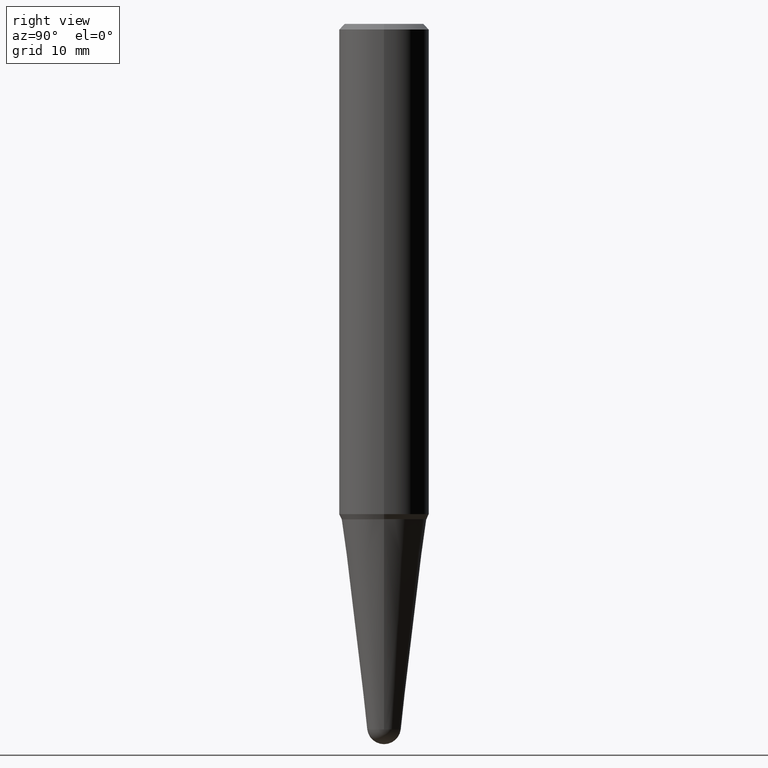
[diagram: clean part render]
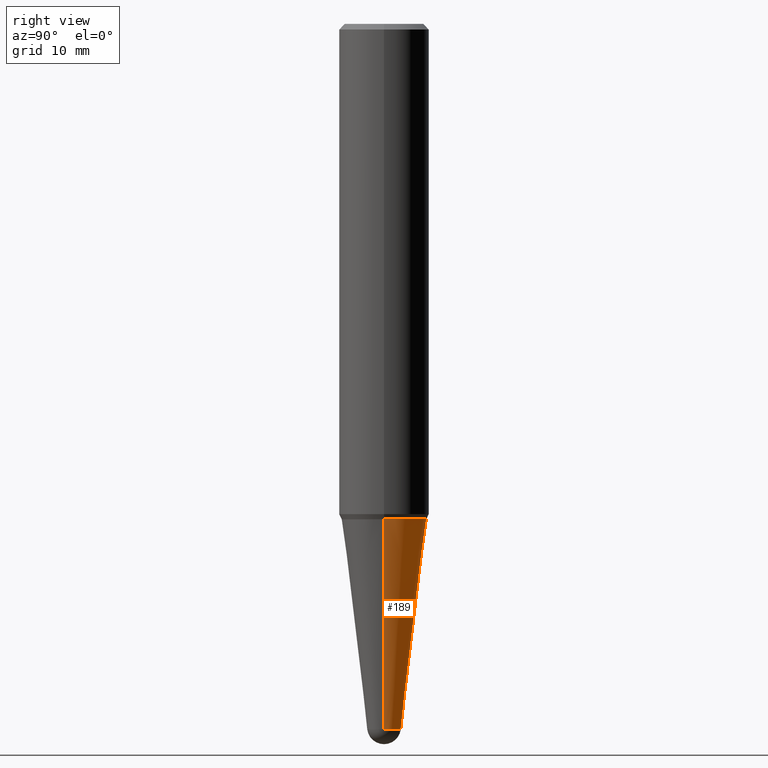
[diagram: same view with one face highlighted and labeled with its STEP entity id]
A machine part, right view. The second image highlights one B-rep face of the part: STEP entity #189.
In plain terms, the highlighted conical surface has half-angle 7 deg.
Its self-contained STEP definition (entity closure, byte-faithful):
#6 = DIRECTION ( 'NONE',  ( -2.445468806185136597E-29, 3.491481338843145583E-15, 1.000000000000000000 ) ) ;
#11 = CARTESIAN_POINT ( 'NONE',  ( 0.2364679309439789157, -1.125282041807015082E-14, -2.750000000000000000 ) ) ;
#17 = CARTESIAN_POINT ( 'NONE',  ( 6.501196143360338918E-16, 0.09310082902394276050, -3.917631344411403482 ) ) ;
#29 = ORIENTED_EDGE ( 'NONE', *, *, #335, .T. ) ;
#43 = CARTESIAN_POINT ( 'NONE',  ( 9.580445246891225390E-29, -1.367833673147939771E-14, -3.917631344411403038 ) ) ;
#50 = CARTESIAN_POINT ( 'NONE',  ( -0.09310082902395643012, -1.046909176500562336E-14, -3.917631344411403038 ) ) ;
#64 = CARTESIAN_POINT ( 'NONE',  ( -0.2364679309439789157, -7.921367976093998557E-15, -2.750000000000000000 ) ) ;
#92 = CIRCLE ( 'NONE', #259, 0.2364679309439789157 ) ;
#94 = DIRECTION ( 'NONE',  ( 1.000000000000000000, -6.982962677686267499E-15, 0.000000000000000000 ) ) ;
#95 = VERTEX_POINT ( 'NONE', #185 ) ;
#96 = CARTESIAN_POINT ( 'NONE',  ( -0.09310082902395643012, -1.301681555391724342E-14, -3.917631344411403038 ) ) ;
#117 = VECTOR ( 'NONE', #269, 39.37007874015748143 ) ;
#118 = DIRECTION ( 'NONE',  ( 1.000000000000000000, -6.982962677686275388E-15, 0.000000000000000000 ) ) ;
#128 = EDGE_CURVE ( 'NONE', #313, #391, #454, .T. ) ;
#132 = ORIENTED_EDGE ( 'NONE', *, *, #339, .F. ) ;
#133 = LINE ( 'NONE', #96, #117 ) ;
#153 = CIRCLE ( 'NONE', #247, 0.09310082902395643012 ) ;
#160 = DIRECTION ( 'NONE',  ( -2.445468806185136597E-29, 3.491481338843145583E-15, 1.000000000000000000 ) ) ;
#164 = CARTESIAN_POINT ( 'NONE',  ( 0.09310082902395643012, -1.432845634581533822E-14, -3.917631344411403038 ) ) ;
#183 = VECTOR ( 'NONE', #305, 39.37007874015748143 ) ;
#185 = CARTESIAN_POINT ( 'NONE',  ( 0.09310082902395643012, -1.279063838194274531E-14, -3.917631344411403038 ) ) ;
#189 = ADVANCED_FACE ( 'NONE', ( #437 ), #316, .T. ) ;
#203 = ORIENTED_EDGE ( 'NONE', *, *, #284, .T. ) ;
#213 = VERTEX_POINT ( 'NONE', #11 ) ;
#232 = DIRECTION ( 'NONE',  ( 1.000000000000000000, -6.982962677686275388E-15, 0.000000000000000000 ) ) ;
#246 = ORIENTED_EDGE ( 'NONE', *, *, #346, .F. ) ;
#247 = AXIS2_PLACEMENT_3D ( 'NONE', #373, #417, #232 ) ;
#249 = ORIENTED_EDGE ( 'NONE', *, *, #128, .T. ) ;
#259 = AXIS2_PLACEMENT_3D ( 'NONE', #342, #406, #94 ) ;
#269 = DIRECTION ( 'NONE',  ( -0.1218693434051476565, 4.331390133080061984E-15, 0.9925461516413219831 ) ) ;
#284 = EDGE_CURVE ( 'NONE', #391, #377, #133, .T. ) ;
#305 = DIRECTION ( 'NONE',  ( 0.1218693434051476565, 2.614447289843977717E-15, 0.9925461516413219831 ) ) ;
#313 = VERTEX_POINT ( 'NONE', #17 ) ;
#316 = CONICAL_SURFACE ( 'NONE', #389, 0.09310082902395643012, 0.1221730476396032522 ) ;
#327 = DIRECTION ( 'NONE',  ( 1.000000000000000000, -6.982962677686275388E-15, 0.000000000000000000 ) ) ;
#333 = LINE ( 'NONE', #164, #183 ) ;
#335 = EDGE_CURVE ( 'NONE', #95, #313, #153, .T. ) ;
#339 = EDGE_CURVE ( 'NONE', #95, #213, #333, .T. ) ;
#342 = CARTESIAN_POINT ( 'NONE',  ( 6.725039217009124520E-29, -9.601573681818649859E-15, -2.750000000000000000 ) ) ;
#346 = EDGE_CURVE ( 'NONE', #213, #377, #92, .T. ) ;
#368 = CARTESIAN_POINT ( 'NONE',  ( 9.580445246891225390E-29, -1.367833673147939771E-14, -3.917631344411403038 ) ) ;
#373 = CARTESIAN_POINT ( 'NONE',  ( 9.580445246891225390E-29, -1.367833673147939771E-14, -3.917631344411403038 ) ) ;
#377 = VERTEX_POINT ( 'NONE', #64 ) ;
#389 = AXIS2_PLACEMENT_3D ( 'NONE', #43, #160, #118 ) ;
#391 = VERTEX_POINT ( 'NONE', #50 ) ;
#406 = DIRECTION ( 'NONE',  ( -2.445468806185136597E-29, 3.491481338843145583E-15, 1.000000000000000000 ) ) ;
#410 = AXIS2_PLACEMENT_3D ( 'NONE', #368, #6, #327 ) ;
#417 = DIRECTION ( 'NONE',  ( -2.445468806185136597E-29, 3.491481338843145583E-15, 1.000000000000000000 ) ) ;
#437 = FACE_OUTER_BOUND ( 'NONE', #451, .T. ) ;
#451 = EDGE_LOOP ( 'NONE', ( #249, #203, #246, #132, #29 ) ) ;
#454 = CIRCLE ( 'NONE', #410, 0.09310082902395643012 ) ;